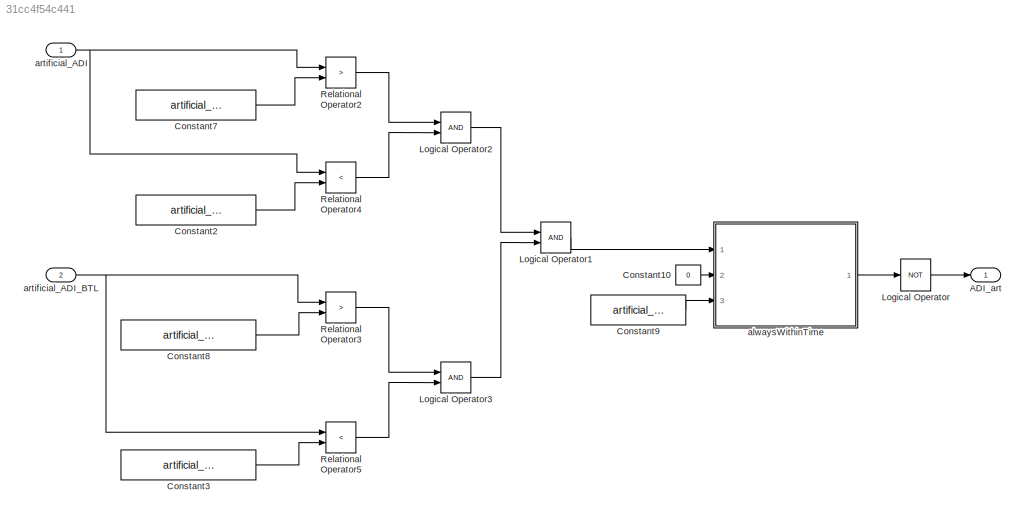
MODEL slx_31cc4f54c441
KIND model
CONFIG AbsTol = auto
CONFIG EnableMultiTasking = off
CONFIG FixedStep = fixedStepSize
CONFIG MaxStep = auto
CONFIG MinStep = auto
CONFIG RelTol = 1e-3
CONFIG SampleTimeConstraint = Unconstrained
CONFIG Solver = FixedStepAuto
CONFIG SolverName = FixedStepAuto
CONFIG StartTime = 0.0
CONFIG StopTime = 10.0
BLOCK [Outport] ADI_art
  IconDisplay = Port number
  OutDataTypeStr = boolean
  PortDimensions = 1
  SamplingMode = Sample based
  SignalType = real
  VectorParamsAs1DForOutWhenUnconnected = off
BLOCK [Constant] Constant10
  Value = 0
BLOCK [Constant] Constant2
  Value = artificial_ADI_max
BLOCK [Constant] Constant3
  Value = artificial_ADI_BTL_max
BLOCK [Constant] Constant7
  Value = artificial_ADI_min
BLOCK [Constant] Constant8
  Value = artificial_ADI_BTL_min
BLOCK [Constant] Constant9
  Value = artificial_ADI_time
BLOCK [Logic] Logical Operator
  AllPortsSameDT = off
  Operator = NOT
  OutDataTypeStr = boolean
  Ports = [1, 1]
BLOCK [Logic] Logical Operator1
  AllPortsSameDT = off
  OutDataTypeStr = boolean
  Ports = [2, 1]
BLOCK [Logic] Logical Operator2
  AllPortsSameDT = off
  OutDataTypeStr = boolean
  Ports = [2, 1]
BLOCK [Logic] Logical Operator3
  AllPortsSameDT = off
  OutDataTypeStr = boolean
  Ports = [2, 1]
BLOCK [RelationalOperator] Relational Operator2
  InputSameDT = off
  Operator = >
  OutDataTypeStr = boolean
  Ports = [2, 1]
  RndMeth = Simplest
BLOCK [RelationalOperator] Relational Operator3
  InputSameDT = off
  Operator = >
  OutDataTypeStr = boolean
  Ports = [2, 1]
  RndMeth = Simplest
BLOCK [RelationalOperator] Relational Operator4
  InputSameDT = off
  Operator = <
  OutDataTypeStr = boolean
  Ports = [2, 1]
  RndMeth = Simplest
BLOCK [RelationalOperator] Relational Operator5
  InputSameDT = off
  Operator = <
  OutDataTypeStr = boolean
  Ports = [2, 1]
  RndMeth = Simplest
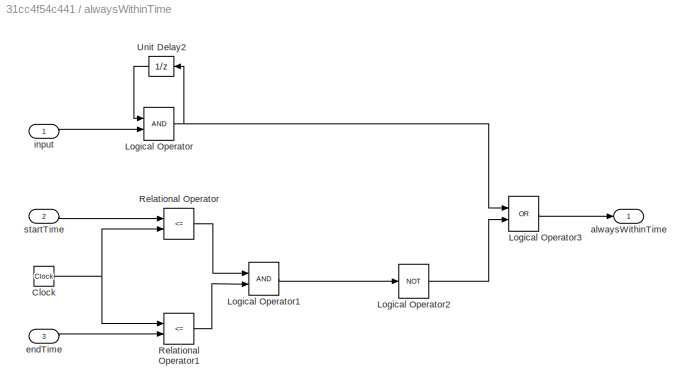
BLOCK [SubSystem] alwaysWithinTime
  CopyFcn = set_param(gcbh,'LinkStatus','none');
  Ports = [3, 1]
  RequestExecContextInheritance = off
BLOCK [Clock] alwaysWithinTime/Clock
BLOCK [Logic] alwaysWithinTime/Logical Operator
  AllPortsSameDT = off
  OutDataTypeStr = boolean
  Ports = [2, 1]
BLOCK [Logic] alwaysWithinTime/Logical Operator1
  AllPortsSameDT = off
  OutDataTypeStr = boolean
  Ports = [2, 1]
BLOCK [Logic] alwaysWithinTime/Logical Operator2
  AllPortsSameDT = off
  Operator = NOT
  OutDataTypeStr = boolean
  Ports = [1, 1]
BLOCK [Logic] alwaysWithinTime/Logical Operator3
  AllPortsSameDT = off
  Operator = OR
  OutDataTypeStr = boolean
  Ports = [2, 1]
BLOCK [RelationalOperator] alwaysWithinTime/Relational Operator
  InputSameDT = off
  Operator = <=
  OutDataTypeStr = boolean
  Ports = [2, 1]
  RndMeth = Simplest
BLOCK [RelationalOperator] alwaysWithinTime/Relational Operator1
  InputSameDT = off
  Operator = <=
  OutDataTypeStr = boolean
  Ports = [2, 1]
  RndMeth = Simplest
BLOCK [UnitDelay] alwaysWithinTime/Unit Delay2
  HasFrameUpgradeWarning = on
  InitialCondition = 1
  SampleTime = -1
BLOCK [Outport] alwaysWithinTime/alwaysWithinTime
  IconDisplay = Port number
  VectorParamsAs1DForOutWhenUnconnected = off
BLOCK [Inport] alwaysWithinTime/endTime
  IconDisplay = Port number
  Port = 3
BLOCK [Inport] alwaysWithinTime/input
  IconDisplay = Port number
BLOCK [Inport] alwaysWithinTime/startTime
  IconDisplay = Port number
  Port = 2
BLOCK [Inport] artificial_ADI
  IconDisplay = Port number
BLOCK [Inport] artificial_ADI_BTL
  IconDisplay = Port number
  Port = 2
LINE Constant10:1 -> alwaysWithinTime:2
LINE Constant2:1 -> Relational Operator4:2
LINE Constant3:1 -> Relational Operator5:2
LINE Constant7:1 -> Relational Operator2:2
LINE Constant8:1 -> Relational Operator3:2
LINE Constant9:1 -> alwaysWithinTime:3
LINE Logical Operator1:1 -> alwaysWithinTime:1
LINE Logical Operator2:1 -> Logical Operator1:1
LINE Logical Operator3:1 -> Logical Operator1:2
LINE Logical Operator:1 -> ADI_art:1
LINE Relational Operator2:1 -> Logical Operator2:1
LINE Relational Operator3:1 -> Logical Operator3:1
LINE Relational Operator4:1 -> Logical Operator2:2
LINE Relational Operator5:1 -> Logical Operator3:2
NET alwaysWithinTime/Clock:1 -> alwaysWithinTime/Relational Operator1:1, alwaysWithinTime/Relational Operator:2
LINE alwaysWithinTime/Logical Operator1:1 -> alwaysWithinTime/Logical Operator2:1
LINE alwaysWithinTime/Logical Operator2:1 -> alwaysWithinTime/Logical Operator3:2
LINE alwaysWithinTime/Logical Operator3:1 -> alwaysWithinTime/alwaysWithinTime:1
NET alwaysWithinTime/Logical Operator:1 -> alwaysWithinTime/Logical Operator3:1, alwaysWithinTime/Unit Delay2:1
LINE alwaysWithinTime/Relational Operator1:1 -> alwaysWithinTime/Logical Operator1:2
LINE alwaysWithinTime/Relational Operator:1 -> alwaysWithinTime/Logical Operator1:1
LINE alwaysWithinTime/Unit Delay2:1 -> alwaysWithinTime/Logical Operator:1
LINE alwaysWithinTime/endTime:1 -> alwaysWithinTime/Relational Operator1:2
LINE alwaysWithinTime/input:1 -> alwaysWithinTime/Logical Operator:2
LINE alwaysWithinTime/startTime:1 -> alwaysWithinTime/Relational Operator:1
LINE alwaysWithinTime:1 -> Logical Operator:1
NET artificial_ADI:1 -> Relational Operator2:1, Relational Operator4:1
NET artificial_ADI_BTL:1 -> Relational Operator3:1, Relational Operator5:1
note: NET lines group one-source signal fan-out (src -> all destinations, sorted); 1:1 wires keep LINE
